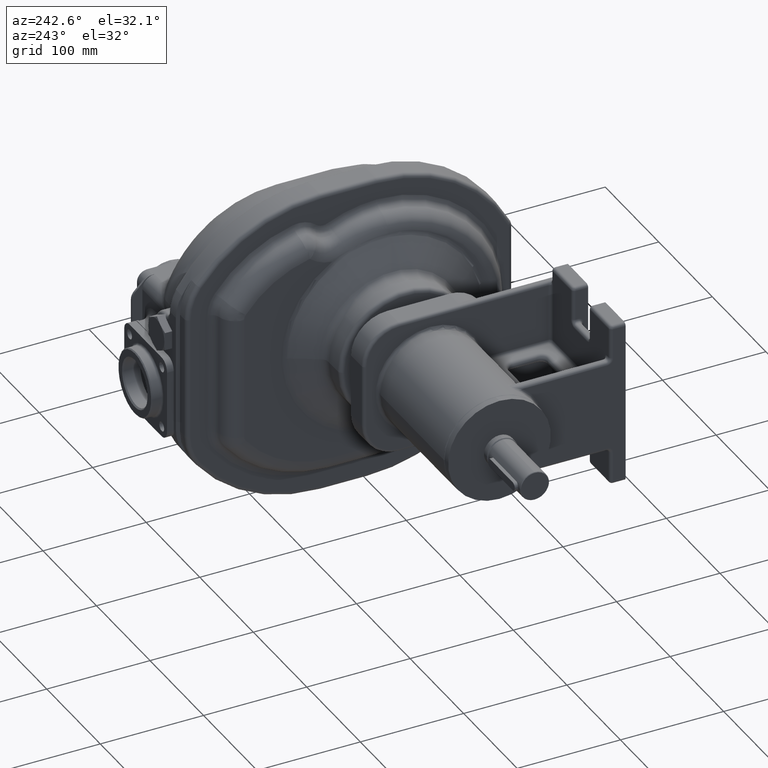
[diagram: clean part render]
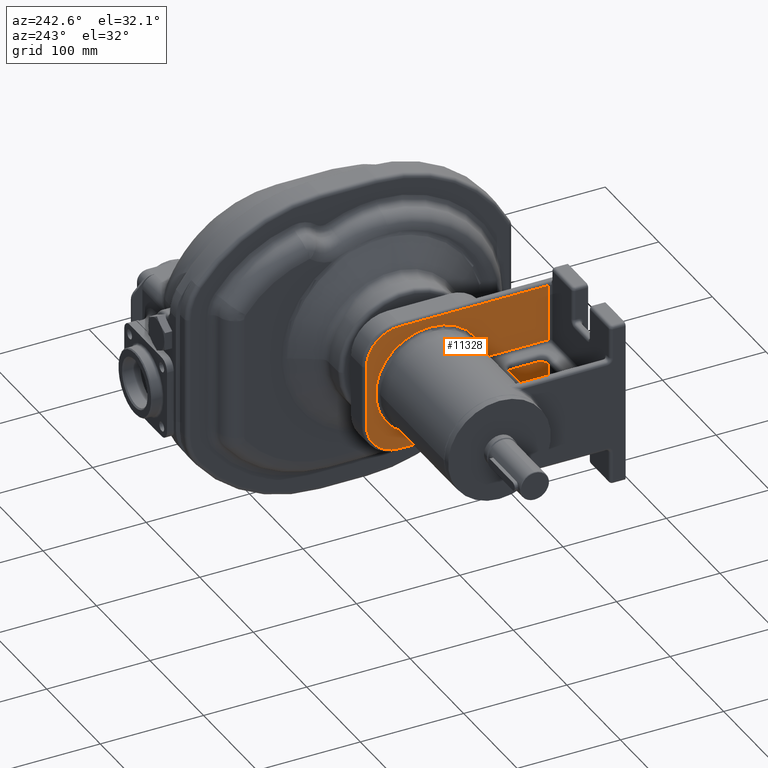
[diagram: same view with one face highlighted and labeled with its STEP entity id]
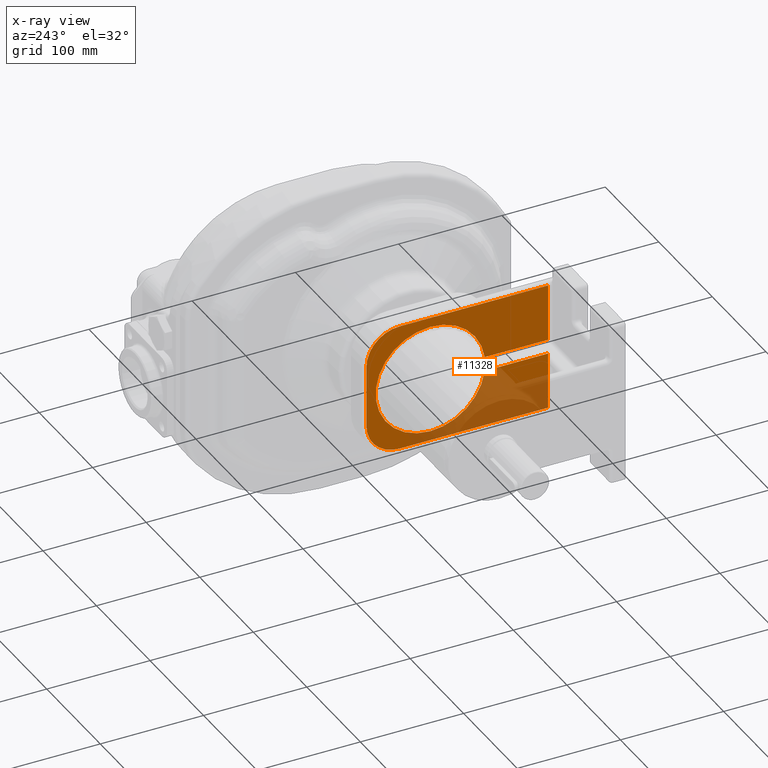
[diagram: x-ray of the same camera — body ghosted, the highlighted face saturated]
A machine part, auxiliary view. The second image highlights one B-rep face of the part: STEP entity #11328.
The next image is the same camera in x-ray: the body ghosted, the highlighted face saturated — about 32% of this face is hidden behind the body in this view.
In plain terms, the highlighted planar face has unit normal (1, 0, 0).
Its self-contained STEP definition (entity closure, byte-faithful):
#1174=DIRECTION('',(-2.228008807751E-10,0.E0,-1.E0));
#1175=VECTOR('',#1174,5.5E1);
#1176=CARTESIAN_POINT('',(-1.45E2,-1.14E2,-7.E0));
#1177=LINE('',#1176,#1175);
#1178=DIRECTION('',(8.509755862936E-11,1.E0,-1.480297366167E-14));
#1179=VECTOR('',#1178,1.44E2);
#1180=CARTESIAN_POINT('',(-1.450000000123E2,-1.14E2,-6.2E1));
#1181=LINE('',#1180,#1179);
#1182=CARTESIAN_POINT('',(-1.45E2,3.E1,-3.E1));
#1183=DIRECTION('',(1.E0,0.E0,0.E0));
#1184=DIRECTION('',(0.E0,0.E0,-1.E0));
#1185=AXIS2_PLACEMENT_3D('',#1182,#1183,#1184);
#1187=DIRECTION('',(0.E0,0.E0,1.E0));
#1188=VECTOR('',#1187,6.E1);
#1189=CARTESIAN_POINT('',(-1.45E2,6.2E1,-3.E1));
#1190=LINE('',#1189,#1188);
#1191=CARTESIAN_POINT('',(-1.45E2,3.E1,3.E1));
#1192=DIRECTION('',(1.E0,0.E0,0.E0));
#1193=DIRECTION('',(0.E0,1.E0,0.E0));
#1194=AXIS2_PLACEMENT_3D('',#1191,#1192,#1193);
#1196=DIRECTION('',(0.E0,-1.E0,0.E0));
#1197=VECTOR('',#1196,1.44E2);
#1198=CARTESIAN_POINT('',(-1.45E2,3.E1,6.2E1));
#1199=LINE('',#1198,#1197);
#1200=DIRECTION('',(0.E0,0.E0,-1.E0));
#1201=VECTOR('',#1200,5.5E1);
#1202=CARTESIAN_POINT('',(-1.45E2,-1.14E2,6.2E1));
#1203=LINE('',#1202,#1201);
#1204=DIRECTION('',(0.E0,1.E0,0.E0));
#1205=VECTOR('',#1204,6.146429785375E1);
#1206=CARTESIAN_POINT('',(-1.45E2,-1.14E2,7.E0));
#1207=LINE('',#1206,#1205);
#1208=DIRECTION('',(0.E0,-1.E0,0.E0));
#1209=VECTOR('',#1208,6.146429785375E1);
#1210=CARTESIAN_POINT('',(-1.45E2,-5.253570214625E1,-7.E0));
#1211=LINE('',#1210,#1209);
#1247=CARTESIAN_POINT('',(-1.45E2,-1.194029629169E-14,0.E0));
#1248=DIRECTION('',(1.E0,0.E0,0.E0));
#1249=DIRECTION('',(0.E0,-9.912396631369E-1,-1.320754716981E-1));
#1250=AXIS2_PLACEMENT_3D('',#1247,#1248,#1249);
#9286=CARTESIAN_POINT('',(-1.45E2,-5.253570214625E1,-7.E0));
#9287=CARTESIAN_POINT('',(-1.45E2,-1.14E2,-7.E0));
#9288=VERTEX_POINT('',#9286);
#9289=VERTEX_POINT('',#9287);
#9298=CARTESIAN_POINT('',(-1.45E2,-1.14E2,7.E0));
#9299=CARTESIAN_POINT('',(-1.45E2,-5.253570214625E1,7.E0));
#9300=VERTEX_POINT('',#9298);
#9301=VERTEX_POINT('',#9299);
#9484=CARTESIAN_POINT('',(-1.450000000123E2,-1.14E2,-6.2E1));
#9485=VERTEX_POINT('',#9484);
#9486=CARTESIAN_POINT('',(-1.45E2,-1.14E2,6.2E1));
#9487=VERTEX_POINT('',#9486);
#9504=CARTESIAN_POINT('',(-1.45E2,6.2E1,3.E1));
#9505=CARTESIAN_POINT('',(-1.45E2,3.E1,6.2E1));
#9506=VERTEX_POINT('',#9504);
#9507=VERTEX_POINT('',#9505);
#9510=CARTESIAN_POINT('',(-1.45E2,6.2E1,-3.E1));
#9511=VERTEX_POINT('',#9510);
#9514=CARTESIAN_POINT('',(-1.45E2,3.E1,-6.2E1));
#9515=VERTEX_POINT('',#9514);
#11305=CARTESIAN_POINT('',(-1.45E2,-1.194029629169E-14,0.E0));
#11306=DIRECTION('',(1.E0,0.E0,0.E0));
#11307=DIRECTION('',(0.E0,0.E0,-1.E0));
#11308=AXIS2_PLACEMENT_3D('',#11305,#11306,#11307);
#11309=PLANE('',#11308);
#11311=ORIENTED_EDGE('',*,*,#11310,.T.);
#11313=ORIENTED_EDGE('',*,*,#11312,.T.);
#11315=ORIENTED_EDGE('',*,*,#11314,.T.);
#11316=ORIENTED_EDGE('',*,*,#11239,.T.);
#11317=ORIENTED_EDGE('',*,*,#11254,.T.);
#11318=ORIENTED_EDGE('',*,*,#11267,.T.);
#11319=ORIENTED_EDGE('',*,*,#11293,.T.);
#11321=ORIENTED_EDGE('',*,*,#11320,.T.);
#11323=ORIENTED_EDGE('',*,*,#11322,.F.);
#11325=ORIENTED_EDGE('',*,*,#11324,.T.);
#11326=EDGE_LOOP('',(#11311,#11313,#11315,#11316,#11317,#11318,#11319,#11321,
#11323,#11325));
#11327=FACE_OUTER_BOUND('',#11326,.F.);
#11328=ADVANCED_FACE('',(#11327),#11309,.F.);
#1186=CIRCLE('',#1185,3.2E1);
#1195=CIRCLE('',#1194,3.2E1);
#1251=CIRCLE('',#1250,5.3E1);
#11239=EDGE_CURVE('',#9511,#9506,#1190,.T.);
#11254=EDGE_CURVE('',#9506,#9507,#1195,.T.);
#11267=EDGE_CURVE('',#9507,#9487,#1199,.T.);
#11293=EDGE_CURVE('',#9487,#9300,#1203,.T.);
#11310=EDGE_CURVE('',#9289,#9485,#1177,.T.);
#11312=EDGE_CURVE('',#9485,#9515,#1181,.T.);
#11314=EDGE_CURVE('',#9515,#9511,#1186,.T.);
#11320=EDGE_CURVE('',#9300,#9301,#1207,.T.);
#11322=EDGE_CURVE('',#9288,#9301,#1251,.T.);
#11324=EDGE_CURVE('',#9288,#9289,#1211,.T.);